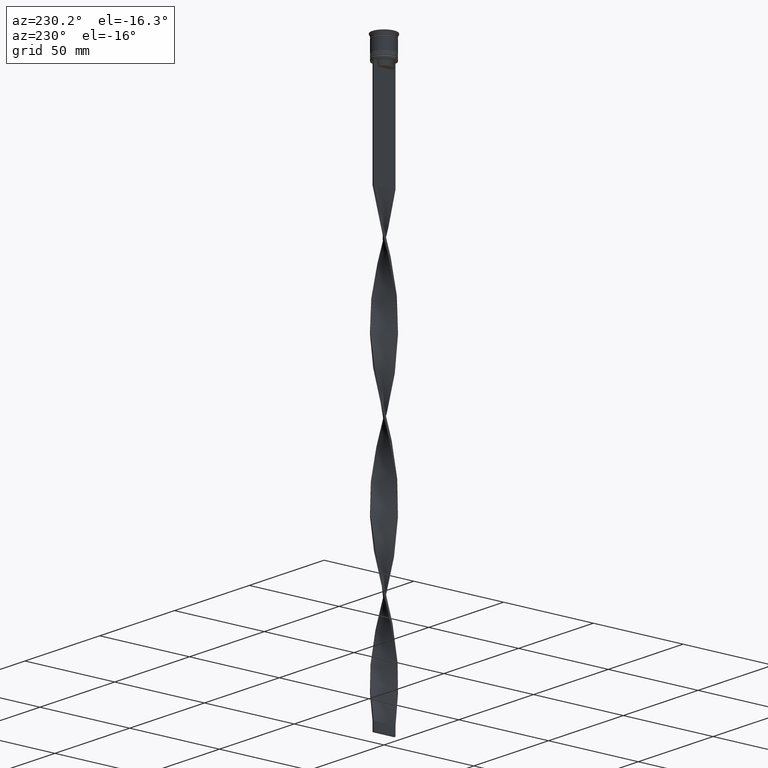
[diagram: clean part render]
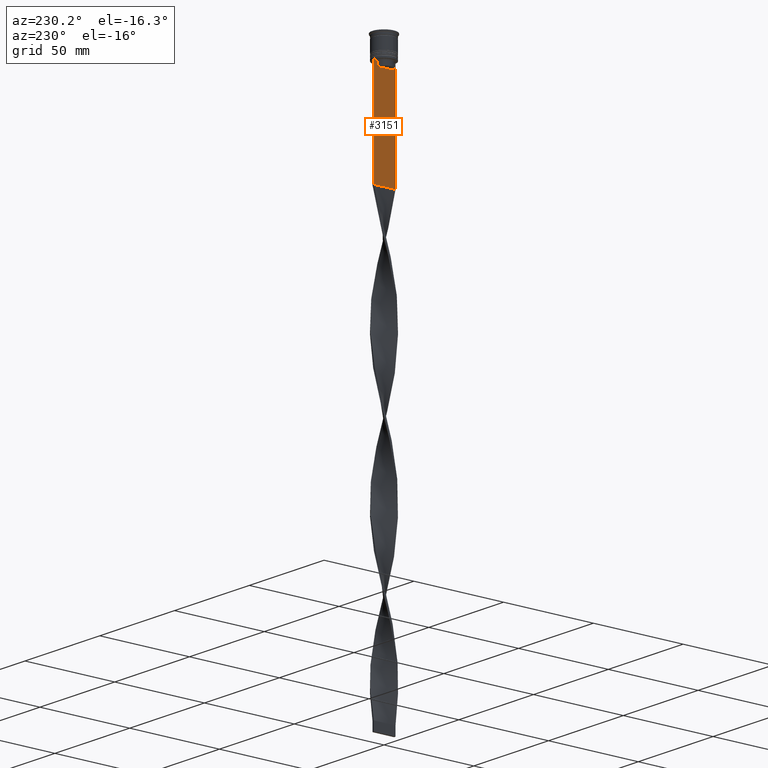
[diagram: same view with one face highlighted and labeled with its STEP entity id]
A machine part, auxiliary view. The second image highlights one B-rep face of the part: STEP entity #3151.
In plain terms, the highlighted planar face has unit normal (-1, 0, 0).
Its self-contained STEP definition (entity closure, byte-faithful):
#25 = CARTESIAN_POINT ( 'NONE',  ( -0.4999999999999997780, -4.874423042781576676, -12.50000000000000000 ) ) ;
#35 = DIRECTION ( 'NONE',  ( 0.000000000000000000, -1.000000000000000000, 0.000000000000000000 ) ) ;
#68 = ORIENTED_EDGE ( 'NONE', *, *, #3011, .F. ) ;
#105 = VECTOR ( 'NONE', #3220, 1000.000000000000000 ) ;
#201 = EDGE_CURVE ( 'NONE', #4031, #420, #969, .T. ) ;
#221 = CARTESIAN_POINT ( 'NONE',  ( -0.4999999999999997780, 4.539195634199897356, -12.83338923751318816 ) ) ;
#236 = CARTESIAN_POINT ( 'NONE',  ( -0.4999999999999997780, -6.000000000000000000, -68.50000000000000000 ) ) ;
#284 = EDGE_CURVE ( 'NONE', #1967, #775, #1490, .T. ) ;
#300 = CARTESIAN_POINT ( 'NONE',  ( -0.4999999999999997780, 6.000000000000000888, -68.50000000000000000 ) ) ;
#311 = VECTOR ( 'NONE', #35, 1000.000000000000000 ) ;
#352 = CARTESIAN_POINT ( 'NONE',  ( -0.4999999999999997780, -6.000000000000000000, -68.50000000000000000 ) ) ;
#420 = VERTEX_POINT ( 'NONE', #300 ) ;
#445 = EDGE_LOOP ( 'NONE', ( #68, #2689, #3707, #1480, #1976, #1218, #3242, #4094, #1108, #584, #995, #2101 ) ) ;
#478 = VERTEX_POINT ( 'NONE', #3454 ) ;
#579 = CARTESIAN_POINT ( 'NONE',  ( -0.4999999999999997780, 4.371498598878878816, -13.00000000000000178 ) ) ;
#584 = ORIENTED_EDGE ( 'NONE', *, *, #1508, .F. ) ;
#626 = VECTOR ( 'NONE', #2748, 1000.000000000000000 ) ;
#635 = VECTOR ( 'NONE', #3193, 1000.000000000000000 ) ;
#647 = VERTEX_POINT ( 'NONE', #2478 ) ;
#654 = LINE ( 'NONE', #2270, #3616 ) ;
#684 = CARTESIAN_POINT ( 'NONE',  ( -0.4999999999999997780, 6.000000000000000888, -0.4584054212077061097 ) ) ;
#734 = LINE ( 'NONE', #1975, #3681 ) ;
#775 = VERTEX_POINT ( 'NONE', #1005 ) ;
#778 = EDGE_CURVE ( 'NONE', #2874, #1967, #2899, .T. ) ;
#813 = CARTESIAN_POINT ( 'NONE',  ( -0.4999999999999997780, 4.371498598878878816, 0.000000000000000000 ) ) ;
#851 = CARTESIAN_POINT ( 'NONE',  ( -0.4999999999999997780, -6.000000000000000000, -12.50000000000000000 ) ) ;
#856 = CARTESIAN_POINT ( 'NONE',  ( -0.4999999999999997780, -6.000000000000000000, -12.50000000000000000 ) ) ;
#871 = CARTESIAN_POINT ( 'NONE',  ( -0.4999999999999997780, -4.874423042781576676, -12.50000000000000000 ) ) ;
#890 = VECTOR ( 'NONE', #2564, 1000.000000000000000 ) ;
#957 = DIRECTION ( 'NONE',  ( -1.000000000000000000, 0.000000000000000000, 0.000000000000000000 ) ) ;
#966 = LINE ( 'NONE', #1939, #635 ) ;
#969 = LINE ( 'NONE', #352, #3001 ) ;
#991 = LINE ( 'NONE', #684, #1371 ) ;
#995 = ORIENTED_EDGE ( 'NONE', *, *, #2240, .F. ) ;
#1005 = CARTESIAN_POINT ( 'NONE',  ( -0.4999999999999997780, -5.878775382679627626, -12.50000000000000000 ) ) ;
#1020 = LINE ( 'NONE', #1921, #311 ) ;
#1108 = ORIENTED_EDGE ( 'NONE', *, *, #778, .F. ) ;
#1210 = LINE ( 'NONE', #813, #1769 ) ;
#1218 = ORIENTED_EDGE ( 'NONE', *, *, #2210, .F. ) ;
#1352 = CARTESIAN_POINT ( 'NONE',  ( -0.4999999999999997780, -4.371498598878878816, -13.00000000000000178 ) ) ;
#1371 = VECTOR ( 'NONE', #2856, 1000.000000000000000 ) ;
#1480 = ORIENTED_EDGE ( 'NONE', *, *, #3098, .T. ) ;
#1490 = LINE ( 'NONE', #856, #626 ) ;
#1508 = EDGE_CURVE ( 'NONE', #647, #2874, #2947, .T. ) ;
#1580 = DIRECTION ( 'NONE',  ( 0.000000000000000000, 0.000000000000000000, 1.000000000000000000 ) ) ;
#1636 = AXIS2_PLACEMENT_3D ( 'NONE', #1915, #957, #1580 ) ;
#1653 = VERTEX_POINT ( 'NONE', #851 ) ;
#1769 = VECTOR ( 'NONE', #2484, 1000.000000000000000 ) ;
#1888 = CARTESIAN_POINT ( 'NONE',  ( -0.4999999999999997780, 6.000000000000001776, -12.50000000000000000 ) ) ;
#1915 = CARTESIAN_POINT ( 'NONE',  ( -0.4999999999999997780, -6.000000000000000000, -0.4584054212077061097 ) ) ;
#1921 = CARTESIAN_POINT ( 'NONE',  ( -0.4999999999999997780, -6.000000000000000000, -12.50000000000000000 ) ) ;
#1939 = CARTESIAN_POINT ( 'NONE',  ( -0.4999999999999997780, 4.399999999999999467, -15.50000000000000000 ) ) ;
#1966 = LINE ( 'NONE', #2254, #105 ) ;
#1967 = VERTEX_POINT ( 'NONE', #871 ) ;
#1971 = CARTESIAN_POINT ( 'NONE',  ( -0.4999999999999997780, -4.371498598878878816, -13.00000000000000178 ) ) ;
#1975 = CARTESIAN_POINT ( 'NONE',  ( -0.4999999999999997780, -6.000000000000000000, -0.4584054212077061097 ) ) ;
#1976 = ORIENTED_EDGE ( 'NONE', *, *, #201, .F. ) ;
#2101 = ORIENTED_EDGE ( 'NONE', *, *, #3649, .F. ) ;
#2161 = VERTEX_POINT ( 'NONE', #2307 ) ;
#2210 = EDGE_CURVE ( 'NONE', #1653, #4031, #734, .T. ) ;
#2216 = DIRECTION ( 'NONE',  ( 0.000000000000000000, -1.000000000000000000, 0.000000000000000000 ) ) ;
#2240 = EDGE_CURVE ( 'NONE', #2631, #647, #966, .T. ) ;
#2250 = CARTESIAN_POINT ( 'NONE',  ( -0.4999999999999997780, -4.706831372970964544, -12.66671687695981596 ) ) ;
#2254 = CARTESIAN_POINT ( 'NONE',  ( -0.4999999999999997780, -6.000000000000000000, -12.50000000000000000 ) ) ;
#2260 = B_SPLINE_CURVE_WITH_KNOTS ( 'NONE', 3,
 ( #3374, #3066, #221, #3827 ),
 .UNSPECIFIED., .F., .F.,
 ( 4, 4 ),
 ( 0.008336552452178418518, 0.009045730124312837891 ),
 .UNSPECIFIED. ) ;
#2270 = CARTESIAN_POINT ( 'NONE',  ( -0.4999999999999997780, -6.000000000000000000, -12.50000000000000000 ) ) ;
#2307 = CARTESIAN_POINT ( 'NONE',  ( -0.4999999999999997780, 5.878775382679627626, -12.50000000000000000 ) ) ;
#2411 = CARTESIAN_POINT ( 'NONE',  ( -0.4999999999999997780, 4.371498598878878816, -15.50000000000000000 ) ) ;
#2478 = CARTESIAN_POINT ( 'NONE',  ( -0.4999999999999997780, -4.371498598878878816, -15.50000000000000000 ) ) ;
#2484 = DIRECTION ( 'NONE',  ( 0.000000000000000000, 0.000000000000000000, -1.000000000000000000 ) ) ;
#2506 = DIRECTION ( 'NONE',  ( 0.000000000000000000, 1.000000000000000000, 0.000000000000000000 ) ) ;
#2564 = DIRECTION ( 'NONE',  ( -0.000000000000000000, -0.000000000000000000, 1.000000000000000000 ) ) ;
#2571 = FACE_OUTER_BOUND ( 'NONE', #445, .T. ) ;
#2631 = VERTEX_POINT ( 'NONE', #2411 ) ;
#2648 = VERTEX_POINT ( 'NONE', #579 ) ;
#2689 = ORIENTED_EDGE ( 'NONE', *, *, #3234, .F. ) ;
#2748 = DIRECTION ( 'NONE',  ( 0.000000000000000000, -1.000000000000000000, 0.000000000000000000 ) ) ;
#2820 = EDGE_CURVE ( 'NONE', #3733, #2161, #1020, .T. ) ;
#2856 = DIRECTION ( 'NONE',  ( 0.000000000000000000, 0.000000000000000000, -1.000000000000000000 ) ) ;
#2874 = VERTEX_POINT ( 'NONE', #1971 ) ;
#2899 = B_SPLINE_CURVE_WITH_KNOTS ( 'NONE', 3,
 ( #1352, #3567, #2250, #25 ),
 .UNSPECIFIED., .F., .F.,
 ( 4, 4 ),
 ( 0.02089901220910806920, 0.02161421017310284978 ),
 .UNSPECIFIED. ) ;
#2947 = LINE ( 'NONE', #3824, #890 ) ;
#3001 = VECTOR ( 'NONE', #2506, 1000.000000000000000 ) ;
#3011 = EDGE_CURVE ( 'NONE', #478, #2648, #2260, .T. ) ;
#3066 = CARTESIAN_POINT ( 'NONE',  ( -0.4999999999999997780, 4.706831415367290106, -12.66671683478478982 ) ) ;
#3098 = EDGE_CURVE ( 'NONE', #3733, #420, #991, .T. ) ;
#3151 = ADVANCED_FACE ( 'NONE', ( #2571 ), #3844, .T. ) ;
#3193 = DIRECTION ( 'NONE',  ( 0.000000000000000000, -1.000000000000000000, 0.000000000000000000 ) ) ;
#3220 = DIRECTION ( 'NONE',  ( 0.000000000000000000, -1.000000000000000000, 0.000000000000000000 ) ) ;
#3234 = EDGE_CURVE ( 'NONE', #2161, #478, #654, .T. ) ;
#3242 = ORIENTED_EDGE ( 'NONE', *, *, #3257, .F. ) ;
#3250 = DIRECTION ( 'NONE',  ( 0.000000000000000000, 0.000000000000000000, -1.000000000000000000 ) ) ;
#3257 = EDGE_CURVE ( 'NONE', #775, #1653, #1966, .T. ) ;
#3374 = CARTESIAN_POINT ( 'NONE',  ( -0.4999999999999997780, 4.874423042781576676, -12.50000000000000000 ) ) ;
#3454 = CARTESIAN_POINT ( 'NONE',  ( -0.4999999999999997780, 4.874423042781576676, -12.50000000000000000 ) ) ;
#3567 = CARTESIAN_POINT ( 'NONE',  ( -0.4999999999999997780, -4.539195586926424220, -12.83338928448044136 ) ) ;
#3616 = VECTOR ( 'NONE', #2216, 1000.000000000000000 ) ;
#3649 = EDGE_CURVE ( 'NONE', #2648, #2631, #1210, .T. ) ;
#3681 = VECTOR ( 'NONE', #3250, 1000.000000000000000 ) ;
#3707 = ORIENTED_EDGE ( 'NONE', *, *, #2820, .F. ) ;
#3733 = VERTEX_POINT ( 'NONE', #1888 ) ;
#3824 = CARTESIAN_POINT ( 'NONE',  ( -0.4999999999999997780, -4.371498598878878816, 0.000000000000000000 ) ) ;
#3827 = CARTESIAN_POINT ( 'NONE',  ( -0.4999999999999997780, 4.371498598878878816, -13.00000000000000178 ) ) ;
#3844 = PLANE ( 'NONE',  #1636 ) ;
#4031 = VERTEX_POINT ( 'NONE', #236 ) ;
#4094 = ORIENTED_EDGE ( 'NONE', *, *, #284, .F. ) ;